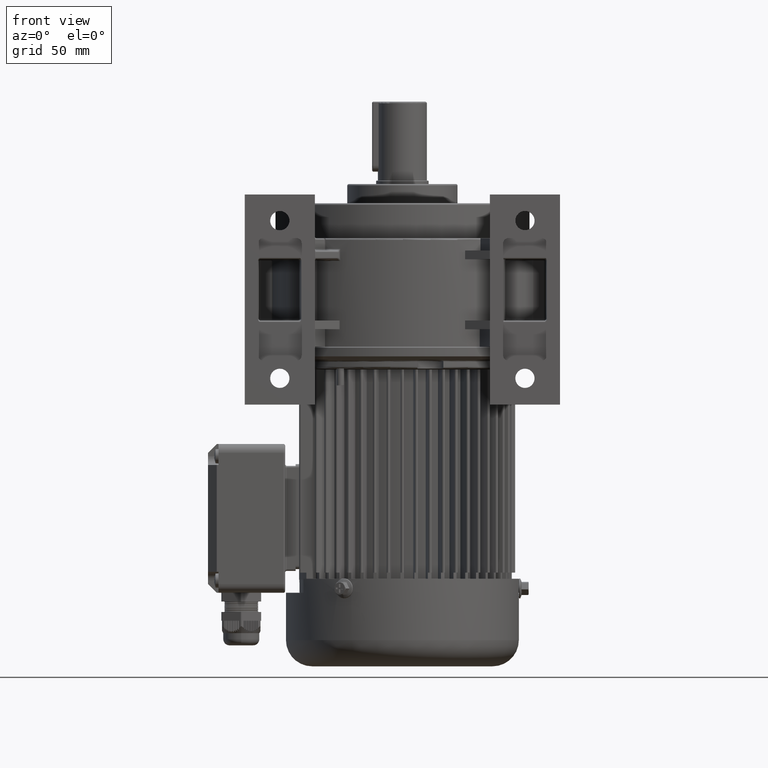
[diagram: clean part render]
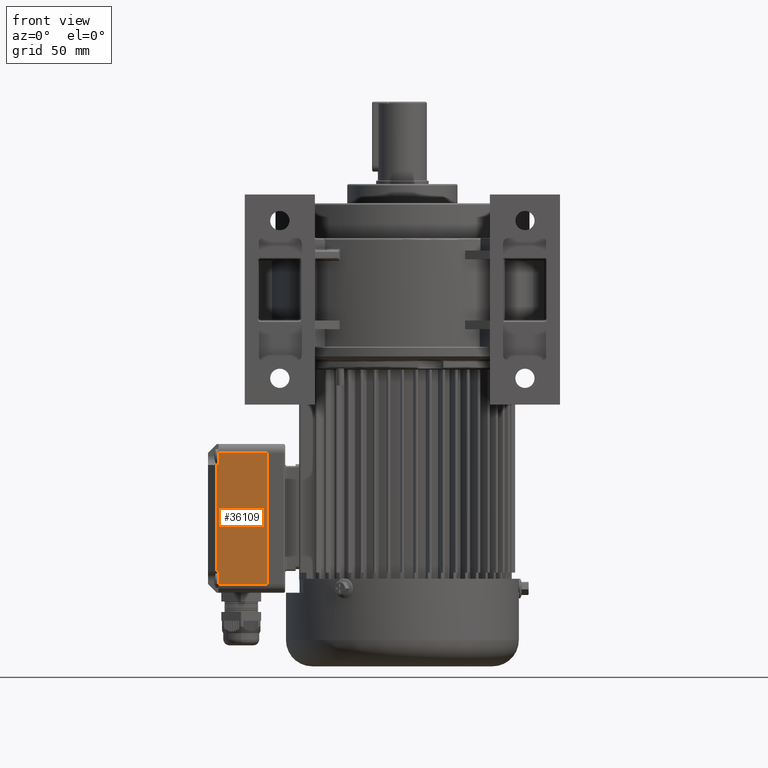
[diagram: same view with one face highlighted and labeled with its STEP entity id]
A machine part, front view. The second image highlights one B-rep face of the part: STEP entity #36109.
In plain terms, the highlighted planar face has unit normal (0, 1, -0).
Its self-contained STEP definition (entity closure, byte-faithful):
#32583 = CARTESIAN_POINT ( 'NONE',  ( 42.50000000000000000, 0.0000000000000000000, -37.50000000000001400 ) ) ;
#32584 = CARTESIAN_POINT ( 'NONE',  ( 42.50000000000001400, 0.0000000000000000000, 37.50000000000000700 ) ) ;
#32589 = CARTESIAN_POINT ( 'NONE',  ( 42.50000000000000000, 28.99999999999999600, 30.49999999999999300 ) ) ;
#32595 = CARTESIAN_POINT ( 'NONE',  ( 42.50000000000000000, 28.99999999999998200, -30.49999999999999300 ) ) ;
#32637 = CARTESIAN_POINT ( 'NONE',  ( 42.50000000000000000, 28.00000000000000400, -30.49999999999999300 ) ) ;
#32664 = VECTOR ( 'NONE', #32733, 1000.000000000000000 ) ;
#32665 = FACE_OUTER_BOUND ( 'NONE', #36033, .T. ) ;
#32667 = CARTESIAN_POINT ( 'NONE',  ( 42.50000000000000000, 28.00000000000000400, -42.49999999999999300 ) ) ;
#32668 = LINE ( 'NONE', #32667, #32730 ) ;
#32669 = LINE ( 'NONE', #32715, #32714 ) ;
#32670 = DIRECTION ( 'NONE',  ( -1.632680918566406300E-016, -0.0000000000000000000, -1.000000000000000000 ) ) ;
#32671 = VECTOR ( 'NONE', #32670, 1000.000000000000000 ) ;
#32672 = CARTESIAN_POINT ( 'NONE',  ( 42.50000000000000000, 0.0000000000000000000, -42.50000000000000700 ) ) ;
#32674 = CARTESIAN_POINT ( 'NONE',  ( 42.50000000000000000, 34.00000000000000000, -37.50000000000001400 ) ) ;
#32675 = LINE ( 'NONE', #32674, #32664 ) ;
#32676 = LINE ( 'NONE', #32672, #32671 ) ;
#32677 = DIRECTION ( 'NONE',  ( 0.0000000000000000000, -1.000000000000000000, 0.0000000000000000000 ) ) ;
#32679 = VECTOR ( 'NONE', #32677, 1000.000000000000000 ) ;
#32680 = CARTESIAN_POINT ( 'NONE',  ( 42.50000000000001400, 34.00000000000000000, 37.50000000000000700 ) ) ;
#32681 = CARTESIAN_POINT ( 'NONE',  ( 42.50000000000000000, 28.00000000000000400, -37.50000000000001400 ) ) ;
#32689 = CARTESIAN_POINT ( 'NONE',  ( 42.50000000000000000, 28.00000000000000400, 30.49999999999999300 ) ) ;
#32691 = LINE ( 'NONE', #32680, #32679 ) ;
#32706 = DIRECTION ( 'NONE',  ( 0.0000000000000000000, 0.0000000000000000000, -1.000000000000000000 ) ) ;
#32707 = VECTOR ( 'NONE', #32706, 1000.000000000000000 ) ;
#32710 = DIRECTION ( 'NONE',  ( -0.0000000000000000000, 1.000000000000000000, -0.0000000000000000000 ) ) ;
#32711 = VECTOR ( 'NONE', #32710, 1000.000000000000000 ) ;
#32712 = CARTESIAN_POINT ( 'NONE',  ( 42.50000000000000000, 28.00000000000000400, 37.50000000000000700 ) ) ;
#32713 = DIRECTION ( 'NONE',  ( -0.0000000000000000000, 1.000000000000000000, -0.0000000000000000000 ) ) ;
#32714 = VECTOR ( 'NONE', #32713, 1000.000000000000000 ) ;
#32715 = CARTESIAN_POINT ( 'NONE',  ( 42.50000000000000000, 28.00000000000000400, -30.49999999999999300 ) ) ;
#32717 = DIRECTION ( 'NONE',  ( 1.632680918566406300E-016, 0.0000000000000000000, 1.000000000000000000 ) ) ;
#32718 = VECTOR ( 'NONE', #32717, 1000.000000000000000 ) ;
#32719 = CARTESIAN_POINT ( 'NONE',  ( 42.50000000000001400, 28.99999999999998600, 42.50000000000000000 ) ) ;
#32720 = DIRECTION ( 'NONE',  ( 1.632680918566406300E-016, 0.0000000000000000000, 1.000000000000000000 ) ) ;
#32721 = DIRECTION ( 'NONE',  ( -1.000000000000000000, 0.0000000000000000000, 1.632680918566406300E-016 ) ) ;
#32722 = CARTESIAN_POINT ( 'NONE',  ( 42.50000000000000000, 34.00000000000000000, -42.50000000000000700 ) ) ;
#32723 = AXIS2_PLACEMENT_3D ( 'NONE', #32722, #32721, #32720 ) ;
#32724 = PLANE ( 'NONE',  #32723 ) ;
#32725 = CARTESIAN_POINT ( 'NONE',  ( 42.50000000000000000, 28.00000000000000400, 42.49999999999999300 ) ) ;
#32726 = CARTESIAN_POINT ( 'NONE',  ( 42.50000000000000000, 28.00000000000000400, 30.49999999999999300 ) ) ;
#32727 = LINE ( 'NONE', #32726, #32711 ) ;
#32728 = LINE ( 'NONE', #32725, #32707 ) ;
#32729 = DIRECTION ( 'NONE',  ( 0.0000000000000000000, 0.0000000000000000000, 1.000000000000000000 ) ) ;
#32730 = VECTOR ( 'NONE', #32729, 1000.000000000000000 ) ;
#32731 = LINE ( 'NONE', #32719, #32718 ) ;
#32733 = DIRECTION ( 'NONE',  ( -0.0000000000000000000, 1.000000000000000000, -0.0000000000000000000 ) ) ;
#36033 = EDGE_LOOP ( 'NONE', ( #36111, #36115, #36118, #36114, #36108, #36117, #36105, #36083 ) ) ;
#36036 = VERTEX_POINT ( 'NONE', #32595 ) ;
#36039 = VERTEX_POINT ( 'NONE', #32583 ) ;
#36046 = VERTEX_POINT ( 'NONE', #32589 ) ;
#36050 = VERTEX_POINT ( 'NONE', #32637 ) ;
#36053 = VERTEX_POINT ( 'NONE', #32584 ) ;
#36083 = ORIENTED_EDGE ( 'NONE', *, *, #36106, .T. ) ;
#36098 = EDGE_CURVE ( 'NONE', #36120, #36053, #32691, .T. ) ;
#36099 = VERTEX_POINT ( 'NONE', #32681 ) ;
#36100 = EDGE_CURVE ( 'NONE', #36053, #36039, #32676, .T. ) ;
#36104 = EDGE_CURVE ( 'NONE', #36039, #36099, #32675, .T. ) ;
#36105 = ORIENTED_EDGE ( 'NONE', *, *, #36104, .T. ) ;
#36106 = EDGE_CURVE ( 'NONE', #36099, #36050, #32668, .T. ) ;
#36108 = ORIENTED_EDGE ( 'NONE', *, *, #36098, .T. ) ;
#36109 = ADVANCED_FACE ( 'NONE', ( #32665 ), #32724, .F. ) ;
#36110 = VERTEX_POINT ( 'NONE', #32689 ) ;
#36111 = ORIENTED_EDGE ( 'NONE', *, *, #36113, .T. ) ;
#36112 = EDGE_CURVE ( 'NONE', #36036, #36046, #32731, .T. ) ;
#36113 = EDGE_CURVE ( 'NONE', #36050, #36036, #32669, .T. ) ;
#36114 = ORIENTED_EDGE ( 'NONE', *, *, #36119, .F. ) ;
#36115 = ORIENTED_EDGE ( 'NONE', *, *, #36112, .T. ) ;
#36116 = EDGE_CURVE ( 'NONE', #36110, #36046, #32727, .T. ) ;
#36117 = ORIENTED_EDGE ( 'NONE', *, *, #36100, .T. ) ;
#36118 = ORIENTED_EDGE ( 'NONE', *, *, #36116, .F. ) ;
#36119 = EDGE_CURVE ( 'NONE', #36120, #36110, #32728, .T. ) ;
#36120 = VERTEX_POINT ( 'NONE', #32712 ) ;